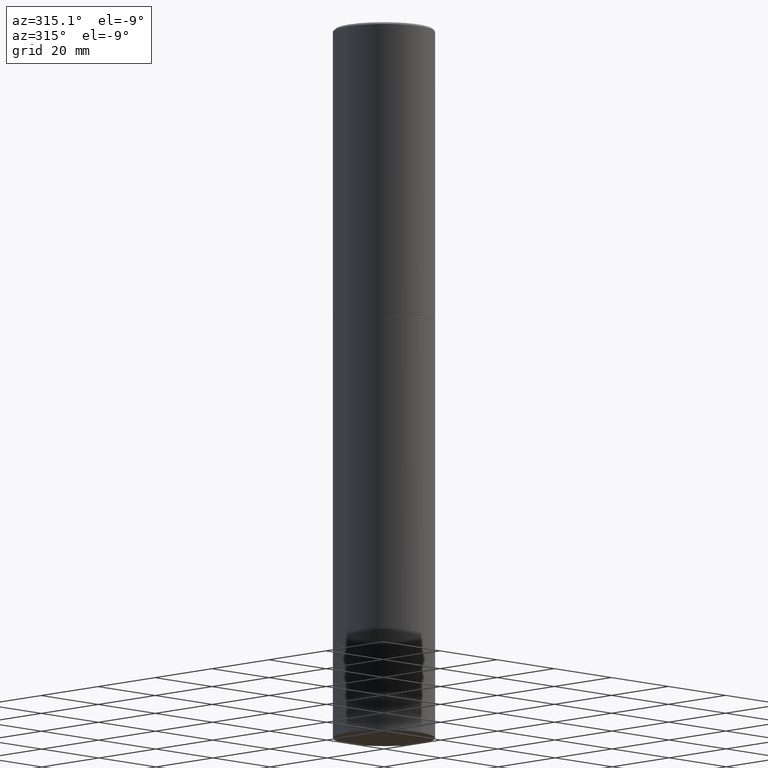
[diagram: clean part render]
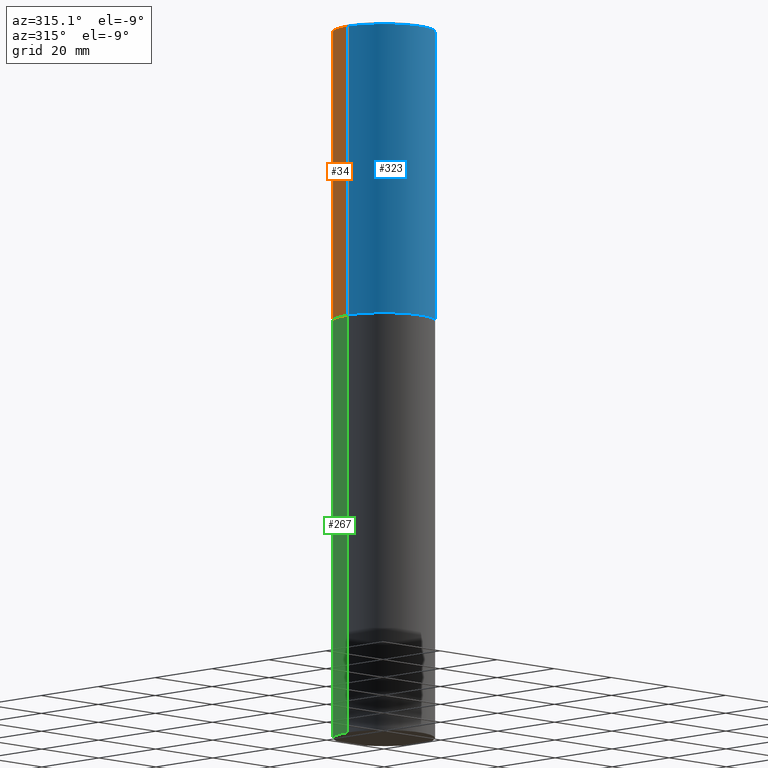
[diagram: same view with three faces highlighted in distinct colors, each labeled with its STEP entity id]
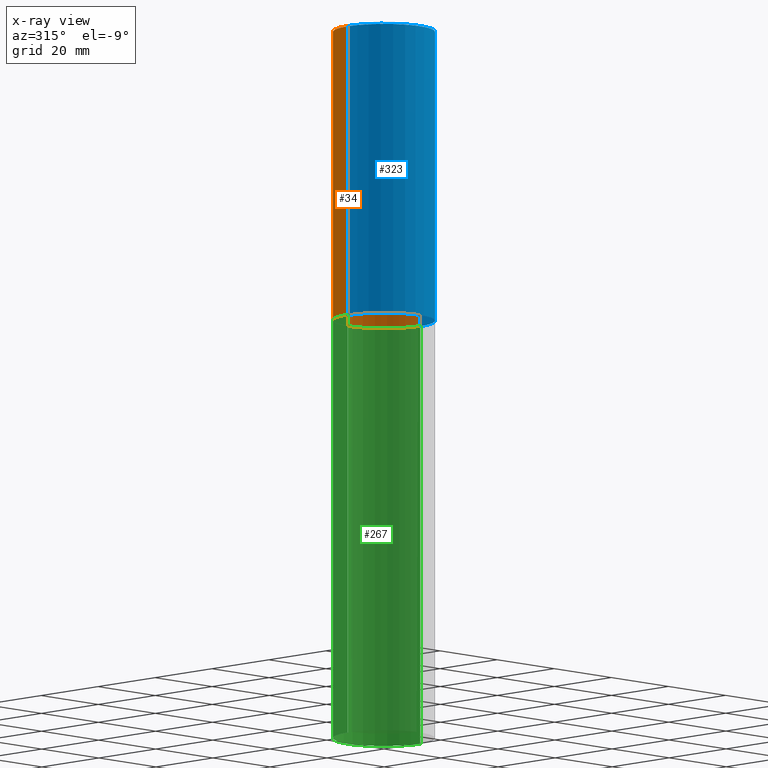
[diagram: x-ray of the same camera — body ghosted, the three highlighted faces saturated]
A machine part, auxiliary view with three faces highlighted in distinct colors.
The next image is the same camera in x-ray (body ghosted, the three faces saturated) — at least one of them is partly hidden behind the body in this view.
Their STEP definitions:

[orange] entity #34 — the highlighted cylindrical surface (partial cylindrical patch) has radius 12.7 mm, axis along (-0, 0, 1).
#23 = CARTESIAN_POINT ( 'NONE',  ( 0.000000000000000000, 0.000000000000000000, 0.000000000000000000 ) ) ;
#34 = ADVANCED_FACE ( 'NONE', ( #334 ), #53, .T. ) ;
#46 = AXIS2_PLACEMENT_3D ( 'NONE', #278, #111, #59 ) ;
#53 = CYLINDRICAL_SURFACE ( 'NONE', #314, 0.4999999999999998335 ) ;
#55 = VERTEX_POINT ( 'NONE', #147 ) ;
#59 = DIRECTION ( 'NONE',  ( 1.000000000000000000, -6.982962677686266711E-15, 0.000000000000000000 ) ) ;
#62 = ORIENTED_EDGE ( 'NONE', *, *, #359, .T. ) ;
#102 = ORIENTED_EDGE ( 'NONE', *, *, #142, .F. ) ;
#107 = LINE ( 'NONE', #324, #366 ) ;
#111 = DIRECTION ( 'NONE',  ( -2.445468806185136597E-29, 3.491481338843145583E-15, 1.000000000000000000 ) ) ;
#138 = DIRECTION ( 'NONE',  ( -2.445468806185136877E-29, 3.491481338843145188E-15, 1.000000000000000000 ) ) ;
#141 = CARTESIAN_POINT ( 'NONE',  ( -0.4999999999999998335, 3.552713678800499746E-15, -2.459467545127452330E-29 ) ) ;
#142 = EDGE_CURVE ( 'NONE', #160, #316, #241, .T. ) ;
#144 = VECTOR ( 'NONE', #138, 39.37007874015748143 ) ;
#147 = CARTESIAN_POINT ( 'NONE',  ( -0.5000000000000000000, -1.499459818505530375E-15, -2.874000000000000110 ) ) ;
#160 = VERTEX_POINT ( 'NONE', #221 ) ;
#161 = DIRECTION ( 'NONE',  ( 1.000000000000000000, -6.982962677686266711E-15, 0.000000000000000000 ) ) ;
#202 = DIRECTION ( 'NONE',  ( 1.000000000000000000, -6.982962677686267499E-15, 4.876176775795936353E-29 ) ) ;
#207 = ORIENTED_EDGE ( 'NONE', *, *, #332, .F. ) ;
#210 = CARTESIAN_POINT ( 'NONE',  ( -0.4999999999999997224, 3.421651712066268085E-15, -0.02000000000000009756 ) ) ;
#214 = CARTESIAN_POINT ( 'NONE',  ( 7.028277348976082113E-29, -1.003451736783520168E-14, -2.874000000000000110 ) ) ;
#216 = ORIENTED_EDGE ( 'NONE', *, *, #347, .T. ) ;
#221 = CARTESIAN_POINT ( 'NONE',  ( 0.4999999999999997224, -3.500078625662627502E-15, -0.02000000000000009756 ) ) ;
#222 = AXIS2_PLACEMENT_3D ( 'NONE', #214, #223, #161 ) ;
#223 = DIRECTION ( 'NONE',  ( -2.445468806185136597E-29, 3.491481338843145583E-15, 1.000000000000000000 ) ) ;
#241 = CIRCLE ( 'NONE', #46, 0.4999999999999997224 ) ;
#247 = DIRECTION ( 'NONE',  ( -2.445468806185136877E-29, 3.491481338843145188E-15, 1.000000000000000000 ) ) ;
#278 = CARTESIAN_POINT ( 'NONE',  ( 4.890937612370297681E-31, -6.982962677686324889E-17, -0.02000000000000009756 ) ) ;
#302 = CIRCLE ( 'NONE', #222, 0.5000000000000000000 ) ;
#311 = EDGE_LOOP ( 'NONE', ( #216, #62, #102, #207 ) ) ;
#312 = DIRECTION ( 'NONE',  ( -2.445468806185136597E-29, 3.491481338843145583E-15, 1.000000000000000000 ) ) ;
#314 = AXIS2_PLACEMENT_3D ( 'NONE', #23, #312, #202 ) ;
#316 = VERTEX_POINT ( 'NONE', #210 ) ;
#324 = CARTESIAN_POINT ( 'NONE',  ( 0.4999999999999998335, -3.491481338843132566E-15, 2.438088387897967336E-29 ) ) ;
#328 = LINE ( 'NONE', #141, #144 ) ;
#332 = EDGE_CURVE ( 'NONE', #356, #160, #107, .T. ) ;
#334 = FACE_OUTER_BOUND ( 'NONE', #311, .T. ) ;
#347 = EDGE_CURVE ( 'NONE', #356, #55, #302, .T. ) ;
#354 = CARTESIAN_POINT ( 'NONE',  ( 0.5000000000000000000, -1.352599870667833503E-14, -2.874000000000000110 ) ) ;
#356 = VERTEX_POINT ( 'NONE', #354 ) ;
#359 = EDGE_CURVE ( 'NONE', #55, #316, #328, .T. ) ;
#366 = VECTOR ( 'NONE', #247, 39.37007874015748143 ) ;

[blue] entity #323 — the highlighted cylindrical surface (partial cylindrical patch) has radius 12.7 mm, axis along (-0, 0, 1).
#35 = DIRECTION ( 'NONE',  ( 1.000000000000000000, -6.982962677686266711E-15, 0.000000000000000000 ) ) ;
#40 = CYLINDRICAL_SURFACE ( 'NONE', #211, 0.4999999999999998335 ) ;
#55 = VERTEX_POINT ( 'NONE', #147 ) ;
#72 = CIRCLE ( 'NONE', #228, 0.4999999999999997224 ) ;
#78 = FACE_OUTER_BOUND ( 'NONE', #178, .T. ) ;
#95 = AXIS2_PLACEMENT_3D ( 'NONE', #250, #234, #205 ) ;
#107 = LINE ( 'NONE', #324, #366 ) ;
#133 = EDGE_CURVE ( 'NONE', #55, #356, #193, .T. ) ;
#134 = ORIENTED_EDGE ( 'NONE', *, *, #133, .T. ) ;
#138 = DIRECTION ( 'NONE',  ( -2.445468806185136877E-29, 3.491481338843145188E-15, 1.000000000000000000 ) ) ;
#141 = CARTESIAN_POINT ( 'NONE',  ( -0.4999999999999998335, 3.552713678800499746E-15, -2.459467545127452330E-29 ) ) ;
#144 = VECTOR ( 'NONE', #138, 39.37007874015748143 ) ;
#147 = CARTESIAN_POINT ( 'NONE',  ( -0.5000000000000000000, -1.499459818505530375E-15, -2.874000000000000110 ) ) ;
#160 = VERTEX_POINT ( 'NONE', #221 ) ;
#178 = EDGE_LOOP ( 'NONE', ( #327, #134, #274, #318 ) ) ;
#193 = CIRCLE ( 'NONE', #95, 0.5000000000000000000 ) ;
#196 = EDGE_CURVE ( 'NONE', #316, #160, #72, .T. ) ;
#205 = DIRECTION ( 'NONE',  ( 1.000000000000000000, -6.982962677686266711E-15, 0.000000000000000000 ) ) ;
#210 = CARTESIAN_POINT ( 'NONE',  ( -0.4999999999999997224, 3.421651712066268085E-15, -0.02000000000000009756 ) ) ;
#211 = AXIS2_PLACEMENT_3D ( 'NONE', #335, #357, #299 ) ;
#221 = CARTESIAN_POINT ( 'NONE',  ( 0.4999999999999997224, -3.500078625662627502E-15, -0.02000000000000009756 ) ) ;
#228 = AXIS2_PLACEMENT_3D ( 'NONE', #317, #265, #35 ) ;
#234 = DIRECTION ( 'NONE',  ( -2.445468806185136597E-29, 3.491481338843145583E-15, 1.000000000000000000 ) ) ;
#247 = DIRECTION ( 'NONE',  ( -2.445468806185136877E-29, 3.491481338843145188E-15, 1.000000000000000000 ) ) ;
#250 = CARTESIAN_POINT ( 'NONE',  ( 7.028277348976082113E-29, -1.003451736783520168E-14, -2.874000000000000110 ) ) ;
#265 = DIRECTION ( 'NONE',  ( -2.445468806185136597E-29, 3.491481338843145583E-15, 1.000000000000000000 ) ) ;
#274 = ORIENTED_EDGE ( 'NONE', *, *, #332, .T. ) ;
#299 = DIRECTION ( 'NONE',  ( 1.000000000000000000, -6.982962677686267499E-15, 4.876176775795936353E-29 ) ) ;
#316 = VERTEX_POINT ( 'NONE', #210 ) ;
#317 = CARTESIAN_POINT ( 'NONE',  ( 4.890937612370297681E-31, -6.982962677686324889E-17, -0.02000000000000009756 ) ) ;
#318 = ORIENTED_EDGE ( 'NONE', *, *, #196, .F. ) ;
#323 = ADVANCED_FACE ( 'NONE', ( #78 ), #40, .T. ) ;
#324 = CARTESIAN_POINT ( 'NONE',  ( 0.4999999999999998335, -3.491481338843132566E-15, 2.438088387897967336E-29 ) ) ;
#327 = ORIENTED_EDGE ( 'NONE', *, *, #359, .F. ) ;
#328 = LINE ( 'NONE', #141, #144 ) ;
#332 = EDGE_CURVE ( 'NONE', #356, #160, #107, .T. ) ;
#335 = CARTESIAN_POINT ( 'NONE',  ( 0.000000000000000000, 0.000000000000000000, 0.000000000000000000 ) ) ;
#354 = CARTESIAN_POINT ( 'NONE',  ( 0.5000000000000000000, -1.352599870667833503E-14, -2.874000000000000110 ) ) ;
#356 = VERTEX_POINT ( 'NONE', #354 ) ;
#357 = DIRECTION ( 'NONE',  ( -2.445468806185136597E-29, 3.491481338843145583E-15, 1.000000000000000000 ) ) ;
#359 = EDGE_CURVE ( 'NONE', #55, #316, #328, .T. ) ;
#366 = VECTOR ( 'NONE', #247, 39.37007874015748143 ) ;

[green] entity #267 — the highlighted cylindrical surface (partial cylindrical patch) has radius 12.7 mm, axis along (-0, 0, 1).
#9 = CARTESIAN_POINT ( 'NONE',  ( 0.5000000000000000000, -2.793185071074515204E-14, -7.000000000000000000 ) ) ;
#41 = EDGE_CURVE ( 'NONE', #271, #249, #336, .T. ) ;
#57 = CARTESIAN_POINT ( 'NONE',  ( 0.5000000000000000000, -1.352949018801717646E-14, -2.875000000000000000 ) ) ;
#61 = DIRECTION ( 'NONE',  ( -2.445468806185136597E-29, 3.491481338843145583E-15, 1.000000000000000000 ) ) ;
#63 = CARTESIAN_POINT ( 'NONE',  ( 7.030722817782267716E-29, -1.003800884917404311E-14, -2.875000000000000000 ) ) ;
#65 = CYLINDRICAL_SURFACE ( 'NONE', #206, 0.5000000000000000000 ) ;
#66 = ORIENTED_EDGE ( 'NONE', *, *, #237, .F. ) ;
#77 = ORIENTED_EDGE ( 'NONE', *, *, #344, .F. ) ;
#92 = VERTEX_POINT ( 'NONE', #315 ) ;
#100 = VECTOR ( 'NONE', #272, 39.37007874015748143 ) ;
#127 = VERTEX_POINT ( 'NONE', #57 ) ;
#130 = CIRCLE ( 'NONE', #257, 0.5000000000000000000 ) ;
#173 = DIRECTION ( 'NONE',  ( -2.445468806185136597E-29, 3.491481338843145583E-15, 1.000000000000000000 ) ) ;
#179 = DIRECTION ( 'NONE',  ( 1.000000000000000000, -6.982962677686266711E-15, 4.876176775795935793E-29 ) ) ;
#183 = CARTESIAN_POINT ( 'NONE',  ( -0.5000000000000000000, -1.368647543173752918E-14, -7.000000000000000000 ) ) ;
#188 = AXIS2_PLACEMENT_3D ( 'NONE', #281, #173, #195 ) ;
#189 = LINE ( 'NONE', #251, #100 ) ;
#190 = EDGE_LOOP ( 'NONE', ( #308, #244, #66, #77 ) ) ;
#195 = DIRECTION ( 'NONE',  ( 1.000000000000000000, -6.982962677686270655E-15, 0.000000000000000000 ) ) ;
#203 = EDGE_CURVE ( 'NONE', #249, #92, #208, .T. ) ;
#206 = AXIS2_PLACEMENT_3D ( 'NONE', #349, #240, #179 ) ;
#208 = LINE ( 'NONE', #235, #325 ) ;
#235 = CARTESIAN_POINT ( 'NONE',  ( -0.5000000000000000000, 3.552713678800500929E-15, -2.459467545127452891E-29 ) ) ;
#237 = EDGE_CURVE ( 'NONE', #127, #92, #130, .T. ) ;
#240 = DIRECTION ( 'NONE',  ( -2.445468806185136597E-29, 3.491481338843145583E-15, 1.000000000000000000 ) ) ;
#244 = ORIENTED_EDGE ( 'NONE', *, *, #203, .T. ) ;
#249 = VERTEX_POINT ( 'NONE', #183 ) ;
#251 = CARTESIAN_POINT ( 'NONE',  ( 0.5000000000000000000, -3.491481338843133355E-15, 2.438088387897967896E-29 ) ) ;
#257 = AXIS2_PLACEMENT_3D ( 'NONE', #63, #61, #321 ) ;
#267 = ADVANCED_FACE ( 'NONE', ( #292 ), #65, .T. ) ;
#271 = VERTEX_POINT ( 'NONE', #9 ) ;
#272 = DIRECTION ( 'NONE',  ( -2.445468806185136877E-29, 3.491481338843145188E-15, 1.000000000000000000 ) ) ;
#281 = CARTESIAN_POINT ( 'NONE',  ( 1.711828164329595394E-28, -2.444036937190201868E-14, -7.000000000000000000 ) ) ;
#292 = FACE_OUTER_BOUND ( 'NONE', #190, .T. ) ;
#308 = ORIENTED_EDGE ( 'NONE', *, *, #41, .T. ) ;
#315 = CARTESIAN_POINT ( 'NONE',  ( -0.5000000000000000000, -1.368647543173752918E-14, -2.875000000000000000 ) ) ;
#321 = DIRECTION ( 'NONE',  ( 1.000000000000000000, -6.982962677686266711E-15, 0.000000000000000000 ) ) ;
#325 = VECTOR ( 'NONE', #346, 39.37007874015748143 ) ;
#336 = CIRCLE ( 'NONE', #188, 0.5000000000000000000 ) ;
#344 = EDGE_CURVE ( 'NONE', #271, #127, #189, .T. ) ;
#346 = DIRECTION ( 'NONE',  ( -2.445468806185136877E-29, 3.491481338843145188E-15, 1.000000000000000000 ) ) ;
#349 = CARTESIAN_POINT ( 'NONE',  ( 0.000000000000000000, 0.000000000000000000, 0.000000000000000000 ) ) ;